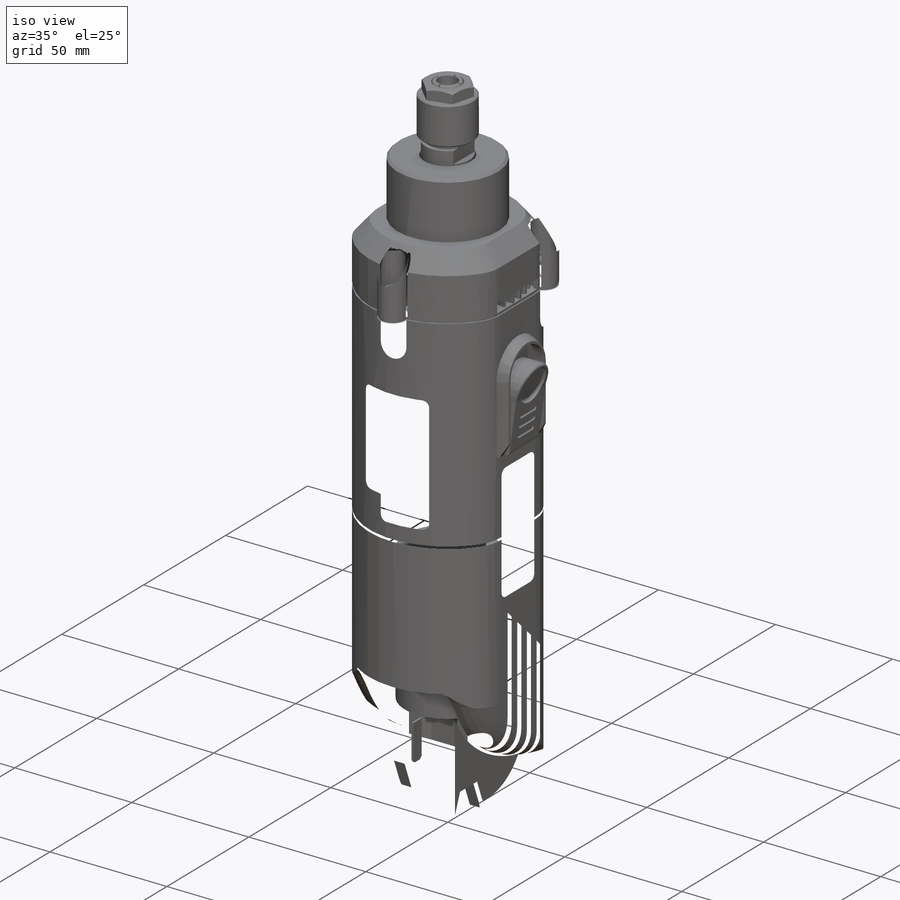
[diagram: iso view]
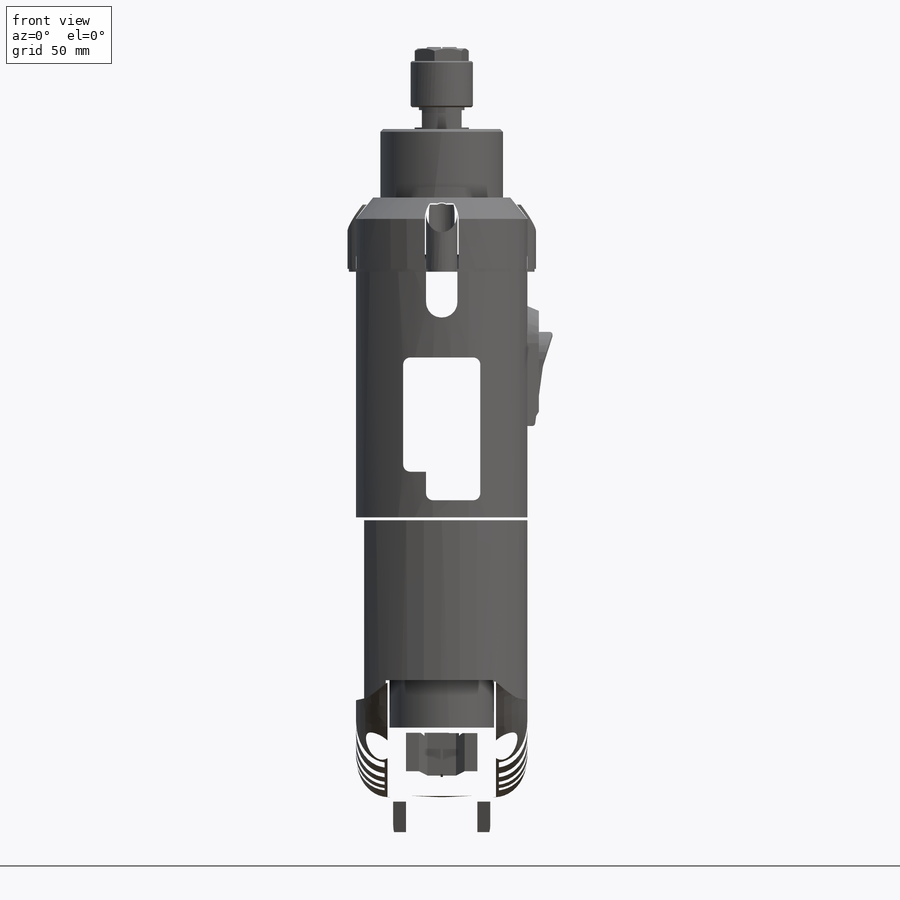
[diagram: front view]
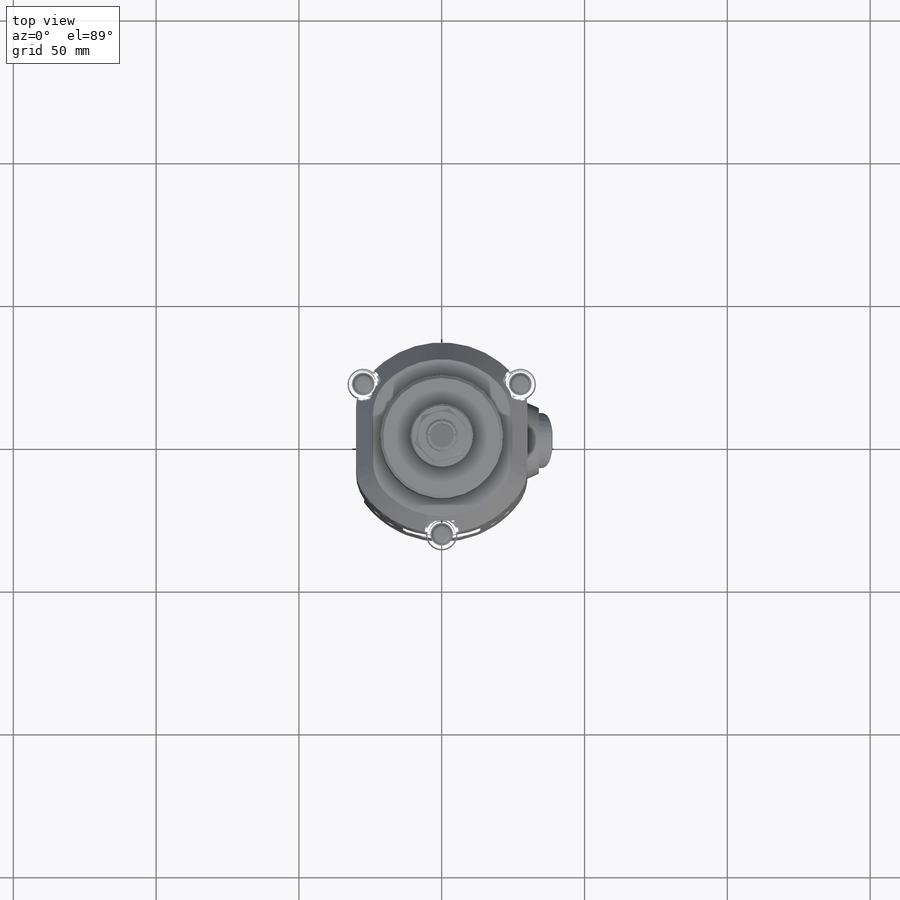
[diagram: top view]
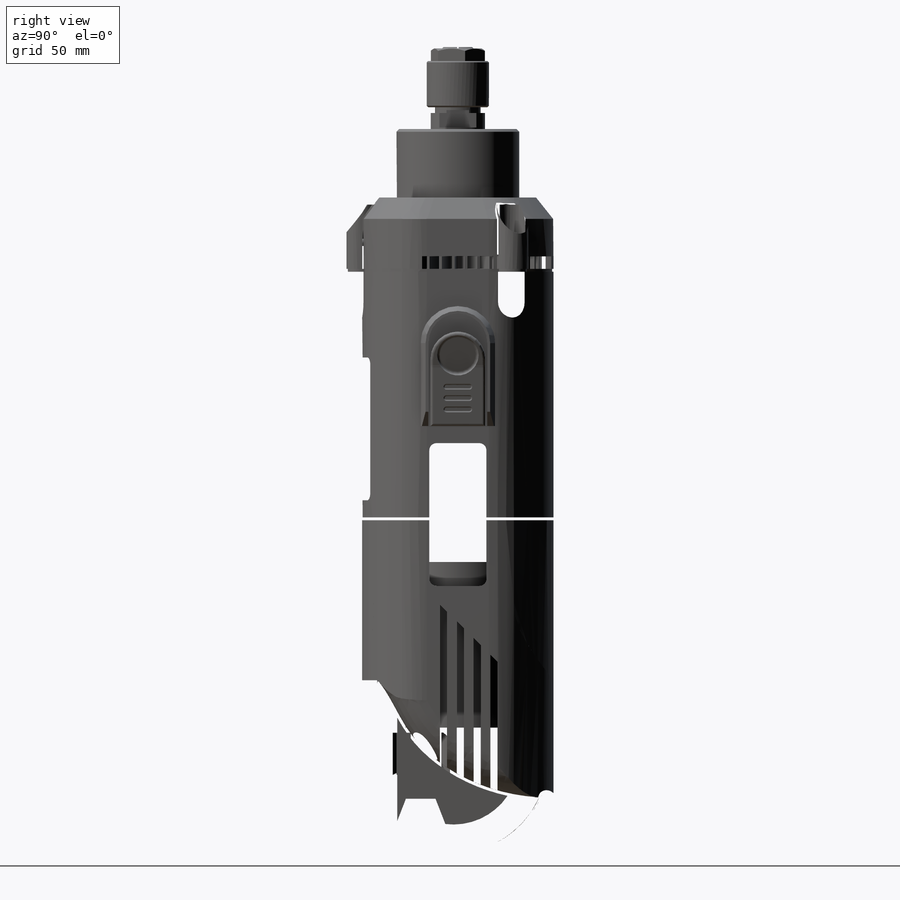
[diagram: right view]
SOLIDWORKS PART (.sldprt)
format: sldprt  version: not decoded by parser v0  size: 4,610,048 bytes
history: native  units: mm
features: sketch x69, fillet x40, cut_extrude x35, extrude x24, chamfer x12, plane x6, cut_revolve x2, sweep x2, material x1, revolve x1 (+12 scaffold rows collapsed)
feature tree (204):
  scaffold x12  (default folders/planes/origin — collapsed)
  material  "Materiale <non specificato>"
  sketch  "Sketch1"  dims[D1=43.0mm]
  extrude  "Boss-Extrude1"  Depth=24mm
  chamfer  "Chamfer1"  Distance=1mm Angle=45deg
  sketch  "Sketch2"  dims[D1=20.0mm]
  cut_extrude  "Cut-Extrude1"  Depth=5mm
  sketch  "Sketch4"  dims[D1=19.0mm]
  extrude  "Boss-Extrude4"  Depth=12.6mm
  sketch  "Sketch5"  dims[D1=13.9mm D2=0.5mm D3=0.5mm D4=1.0mm D5=1.0mm]
  cut_extrude  "Cut-Extrude2"  [1 undecoded]
  sketch  "Sketch6"  dims[D1=2.0mm D2=1.5mm]
  cut_revolve  "Cut-Revolve1"  Angle=360deg
  sketch  "Sketch7"  dims[D1=21.8mm]
  extrude  "Boss-Extrude5"  Depth=16.2mm
  chamfer  "Chamfer2"  Distance=0.5mm Angle=45deg
  sketch  "Sketch8"  dims[D1=16.95mm]
  extrude  "Boss-Extrude6"  Depth=4.4mm
  sketch  "Sketch9"  dims[D1=20.0mm D2=1.0mm D3=1.7mm]
  cut_revolve  "Cut-Revolve2"  Angle=360deg
  sketch  "Sketch10"  dims[D1=11.5mm]
  cut_extrude  "Cut-Extrude3"  Depth=5mm
  sketch  "Sketch11"  dims[c1.D1=11.0mm c1.D2=8.0mm c1.D3=0.25mm c1.D4=0.25mm c2.D3=4.0]
  extrude  "Boss-Extrude7"  Depth=5.5mm
  chamfer  "Chamfer3"  Distance=0.5mm Angle=45deg
  chamfer  "Chamfer4"  Distance=0.5mm Angle=45deg
  chamfer  "Chamfer5"  Distance=0.5mm Angle=45deg
  chamfer  "Chamfer6"  Distance=0.5mm Angle=45deg
  fillet  "Fillet1"  Radius=0.2mm
  fillet  "Fillet2"  Radius=0.2mm
  fillet  "Fillet3"  Radius=0.2mm
  fillet  "Fillet4"  Radius=0.2mm
  sketch  "Sketch12"  dims[D1=8.0mm]
  extrude  "Boss-Extrude8"  Depth=11mm
  sketch  "Sketch13"  dims[D1=7.25mm]
  extrude  "Boss-Extrude9"  Depth=13mm
  sketch  "Sketch14"  dims[c1.D1=~0.565034mm c2.D1=45.0deg]
  revolve  "Revolve1"  Angle=360deg
  sketch  "Sketch15"  dims[D1=67.0mm D2=60.0mm]
  extrude  "Boss-Extrude10"  Depth=112mm
  chamfer  "Chamfer8"  Distance=6mm
  fillet  "Fillet5"  Radius=20.2mm
  fillet  "Fillet6"  Radius=15mm
  sketch  "Sketch16"  dims[D1=80.0mm D2=42.0mm D3=26.0mm]
  extrude  "Boss-Extrude11"  Depth=4mm
  chamfer  "Chamfer9"  Distance=4mm
  sketch  "Sketch17"  dims[D1=5.0mm]
  cut_extrude  "Cut-Extrude4"  [1 undecoded]
  sketch  "Sketch18"  dims[D1=1.0mm]
  cut_extrude  "Cut-Extrude5"  [1 undecoded]
  sketch  "Sketch20"  dims[D1=33.0mm D2=0.7mm]
  extrude  "Boss-Extrude12"  Depth=8.8mm
  sketch  "Sketch21"
  cut_extrude  "Cut-Extrude6"  [1 undecoded]
  fillet  "Fillet7"  Radius=1mm
  fillet  "Fillet8"  Radius=5mm
  sketch  "Sketch22"  dims[D1=8.0mm D2=2.0mm D3=6.0mm D4=3.0]
  cut_extrude  "Cut-Extrude7"  Depth=0.5mm
  fillet  "Fillet9"  Radius=0.5mm
  sketch  "Sketch23"
  cut_extrude  "Cut-Extrude8"  Depth=1mm
  fillet  "Fillet10"  Radius=1mm
  sketch  "Sketch24"  dims[D1=1.0mm D2=25.0mm D3=0.5mm]
  sketch  "Sketch25"
  sweep  "Cut-Sweep2"
  sketch  "Sketch26"
  cut_extrude  "Cut-Extrude9"  Depth=1mm
  sketch  "Sketch27"  dims[D1=25.0mm D2=14.0mm D3=17.0mm]
  cut_extrude  "Cut-Extrude13"  Depth=4.4mm
  sketch  "Sketch28"  dims[D1=2.0mm]
  cut_extrude  "Cut-Extrude14"  Depth=5mm
  sketch  "Sketch29"  dims[c1.D1=1.0mm c2.D1=41.0]
  extrude  "Boss-Extrude13"  Depth=5mm
  sketch  "Sketch30"  dims[D1=11.0mm D2=55.0mm]
  extrude  "Boss-Extrude14"  Depth=23mm
  sketch  "Sketch31"  dims[D1=9.0mm]
  cut_extrude  "Cut-Extrude15"  Depth=15mm
  sketch  "Sketch32"  dims[c1.D1=10.0mm c1.D3=~4.751972mm c1.D4=11.0mm c2.D3=0.5mm c2.D4=0.5mm c2.D2=0.5mm]
  cut_extrude  "Cut-Extrude16"  Depth=1mm
  sketch  "Sketch33"  dims[D1=3.3mm D2=11.0mm D3=~6.762537mm]
  sketch  "Sketch34"
  sweep  "Cut-Sweep3"
  fillet  "Fillet11"  Radius=0.5mm
  fillet  "Fillet12"  Radius=0.5mm
  fillet  "Fillet13"  Radius=0.5mm
  fillet  "Fillet14"  Radius=0.5mm
  fillet  "Fillet15"  Radius=0.5mm
  fillet  "Fillet16"  Radius=0.5mm
  fillet  "Fillet17"  Radius=0.5mm
  fillet  "Fillet20"  Radius=0.5mm
  fillet  "Fillet21"  Radius=0.5mm
  fillet  "Fillet22"  Radius=0.5mm
  sketch  "Sketch37"  dims[D1=7.0mm]
  extrude  "Boss-Extrude15"  Depth=2.5mm
  fillet  "Fillet23"  Radius=1.5mm
  fillet  "Fillet24"  Radius=1.5mm
  fillet  "Fillet25"  Radius=1.5mm
  sketch  "Sketch38"
  cut_extrude  "Cut-Extrude17"  Depth=2.3mm
  sketch  "Sketch40"
  extrude  "Boss-Extrude16"  Depth=16mm
  sketch  "Sketch43"
  extrude  "Boss-Extrude17"  Depth=16mm
  fillet  "Fillet26"  Radius=5.4mm
  fillet  "Fillet27"  Radius=5.4mm
  fillet  "Fillet28"  Radius=5.4mm
  sketch  "Sketch44"  dims[D4=2.5mm D1=50.0mm D2=20.0mm D3=6.0mm]
  cut_extrude  "Cut-Extrude18"  Depth=0.5mm
  sketch  "Sketch45"  dims[D6=2.5mm D1=27.0mm D2=50.0mm D3=6.0mm D4=10.0mm D5=8.0mm]
  cut_extrude  "Cut-Extrude19"  Depth=0.5mm
  sketch  "Sketch46"  dims[D1=0.5mm]
  extrude  "Boss-Extrude18"  Depth=1mm
  sketch  "Sketch47"
  extrude  "Boss-Extrude19"  Depth=116.5mm
  sketch  "Sketch48"  dims[D4=2.5mm D1=20.0mm D2=50.0mm D3=6.0mm]
  cut_extrude  "Cut-Extrude20"  Depth=0.5mm
  sketch  "Sketch49"
  sketch  "Sketch50"  dims[c1.D2=4.0mm c1.D5=1.0mm c1.D6=0.5mm c1.D1=33.0mm c2.D2=4.0mm c2.D3=20.0mm c2.D4=5.0mm c2.D7=9.0mm c2.D8=9.0mm c2.D9=23.0mm c2.D10=18.0mm]
  cut_extrude  "Cut-Extrude21"  [1 undecoded]
  sketch  "Sketch51"  dims[D1=64.0mm D2=1.0mm]
  plane  "Plane1"  Offset=18mm
  plane  "Plane2"  Offset=18mm
  sketch  "Sketch53"
  sketch  "Sketch54"
  cut_extrude  "Cut-Extrude23"  Depth=20.5mm
  cut_extrude  "Cut-Extrude24"  Depth=20.5mm
  sketch  "Sketch55"
  cut_extrude  "Cut-Extrude25"  Depth=60.5mm
  fillet  "Fillet29"  Radius=10mm
  fillet  "Fillet30"  Radius=2.5mm
  fillet  "Fillet31"  Radius=1mm
  fillet  "Fillet33"  Radius=1mm
  fillet  "Fillet34"  Radius=11mm
  fillet  "Fillet35"  Radius=1mm
  fillet  "Fillet36"  Radius=1mm
  fillet  "Fillet37"  Radius=11mm
  fillet  "Fillet38"  Radius=1mm
  fillet  "Fillet39"  Radius=2mm
  fillet  "Fillet40"  Radius=10mm
  sketch  "Sketch56"  dims[D1=25.0mm D2=14.0mm D3=13.0mm D4=10.0mm D5=16.0mm]
  cut_extrude  "Cut-Extrude26"  Depth=30mm
  sketch  "Sketch57"  dims[c1.D1=21.0mm c1.D2=7.5mm c1.D3=11.0mm c1.D4=13.0mm c2.D2=9.0mm]
  cut_extrude  "Cut-Extrude27"  [1 undecoded]
  sketch  "Sketch58"  dims[D1=5.0mm D2=11.0mm D3=16.0mm]
  cut_extrude  "Cut-Extrude28"  Depth=9mm
  chamfer  "Chamfer10"  Distance=5mm Angle=45deg
  chamfer  "Chamfer11"  Distance=5mm Angle=45deg
  sketch  "Sketch59"
  cut_extrude  "Cut-Extrude29"  Depth=0.1mm
  sketch  "Sketch60"  dims[D1=0.8mm D2=0.8mm D3=5.0mm D4=5.0mm D5=7.0mm]
  extrude  "Boss-Extrude20"  Depth=15.5mm
  chamfer  "Chamfer12"  Distance=1mm Angle=45deg
  chamfer  "Chamfer13"  Distance=1mm Angle=45deg
  plane  "Plane3"  Offset=234.511008mm
  sketch  "Sketch61"  dims[D1=13.0mm D2=13.0mm D3=4.0mm]
  cut_extrude  "Cut-Extrude30"  Depth=35.5mm
  sketch  "Sketch62"  dims[D1=26.0mm]
  extrude  "Boss-Extrude21"  Depth=6.25mm
  sketch  "Sketch63"
  cut_extrude  "Cut-Extrude31"  Depth=2mm
  sketch  "Sketch64"  dims[D1=250.0]
  extrude  "Boss-Extrude22"  [1 undecoded]
  plane  "Plane4"
  sketch  "Sketch65"
  cut_extrude  "Cut-Extrude32"  Depth=0.5mm
  sketch  "Sketch66"  dims[D1=56.0mm]
  sketch  "Sketch67"  dims[c1.D1=2.5mm c1.D2=2.5mm c1.D3=2.5mm c1.D4=2.5mm c1.D5=3.4mm c1.D6=3.4mm c1.D7=3.4mm c1.D8=3.7mm c1.D9=20.0mm c2.D1=5.0mm]
  cut_extrude  "Cut-Extrude33"  [1 undecoded]
  sketch  "Sketch68"  dims[D1=2.0mm]
  cut_extrude  "Cut-Extrude34"  [1 undecoded]
  sketch  "Sketch69"
  cut_extrude  "Cut-Extrude35"  [1 undecoded]
  sketch  "Sketch70"
  extrude  "Boss-Extrude23"  Depth=0.5mm
  sketch  "Sketch71"
  extrude  "Boss-Extrude24"  Depth=0.5mm
  sketch  "Sketch72"
  cut_extrude  "Cut-Extrude36"  [1 undecoded]
  sketch  "Sketch73"
  cut_extrude  "Cut-Extrude37"  [1 undecoded]
  plane  "Plane5"  Offset=127.614324mm
  sketch  "Sketch74"
  extrude  "Boss-Extrude25"  Depth=58mm
  plane  "Plane6"  Offset=164mm
  sketch  "Sketch75"  dims[D1=7.0mm]
  cut_extrude  "Cut-Extrude38"  Depth=58mm
  fillet  "Fillet42"  Radius=0.7mm
  sketch  "Sketch76"  dims[D1=6.0mm D2=6.0mm]
  extrude  "Boss-Extrude26"  Depth=2.5mm
  fillet  "Fillet43"  Radius=1.5mm
  fillet  "Fillet44"  Radius=1.5mm
  sketch  "Sketch77"
  cut_extrude  "Cut-Extrude39"  Depth=2mm
decode coverage: 148 of 185 modeling features carry decoded parameters
note: ~ marks probable driven/reference dimensions
note: 12 parameter values undecoded
summary: no parameter record found for 12 features
note: suppression state not decoded; provenance and decode notes live in map.json
